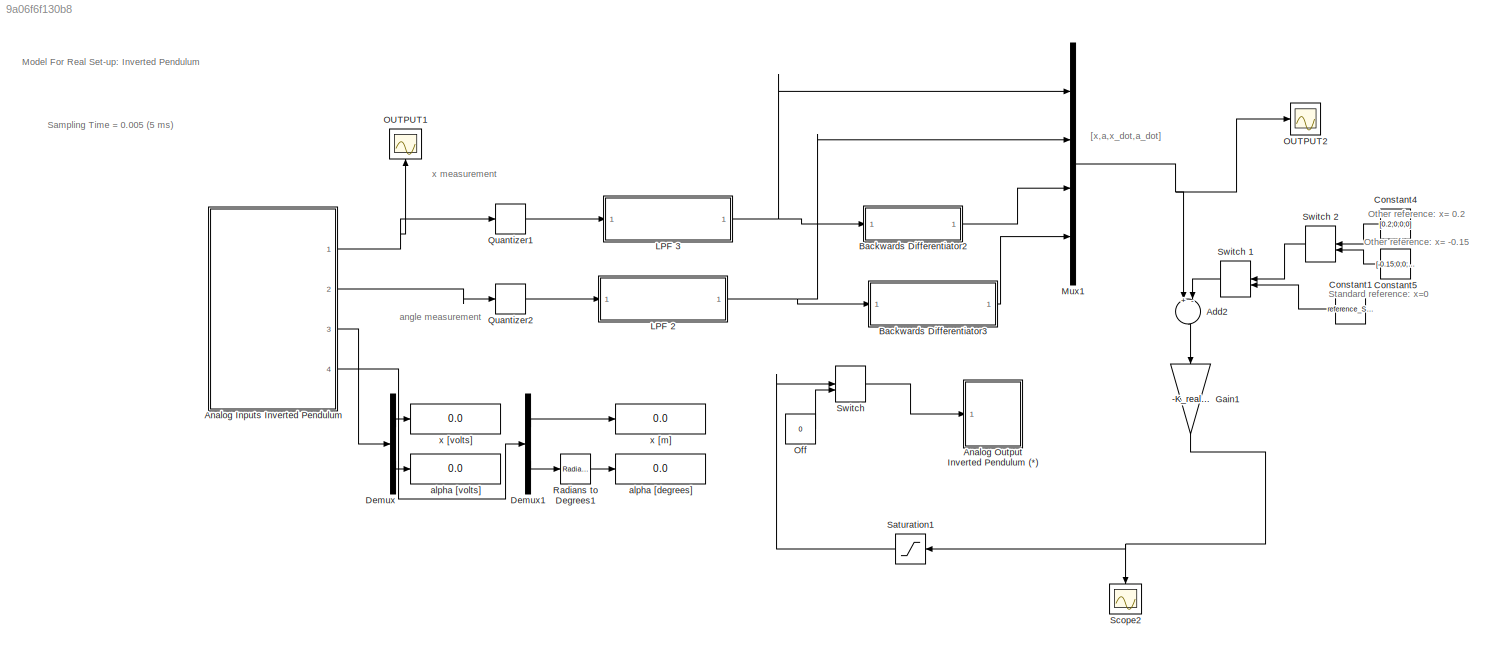
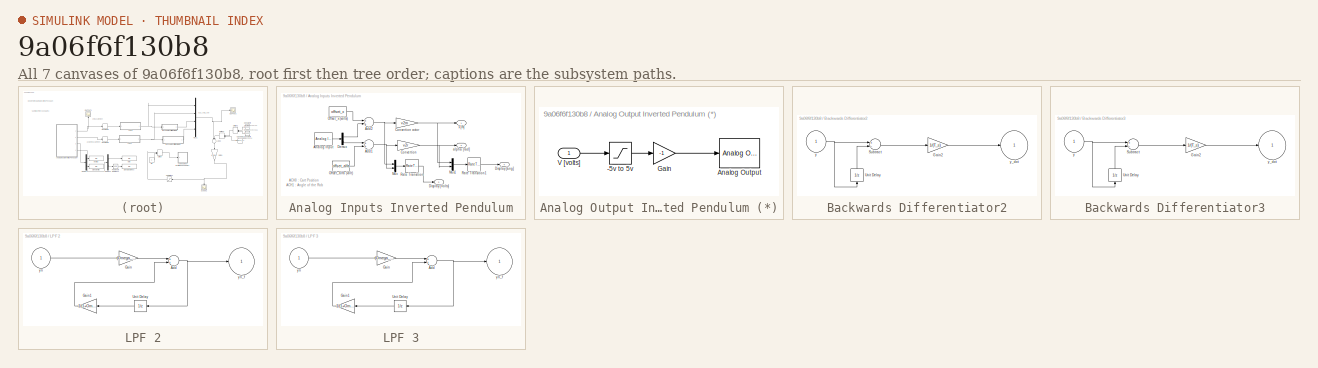
[diagram: thumbnail index - all 7 canvases of the model, root first then tree order]
MODEL slx_9a06f6f130b8
KIND model
CONFIG AbsTol = auto
CONFIG EnableMultiTasking = off
CONFIG FixedStep = 0.005
CONFIG MaxStep = auto
CONFIG MinStep = auto
CONFIG RelTol = 1e-3
CONFIG SampleTimeConstraint = Unconstrained
CONFIG Solver = FixedStepDiscrete
CONFIG SolverName = FixedStepDiscrete
CONFIG StartTime = 0.0
CONFIG StopTime = inf
BLOCK [Sum] Add2
  InputSameDT = off
  Inputs = +-
  OutDataTypeStr = Inherit: Inherit via internal rule
  Ports = [2, 1]
  SaturateOnIntegerOverflow = off
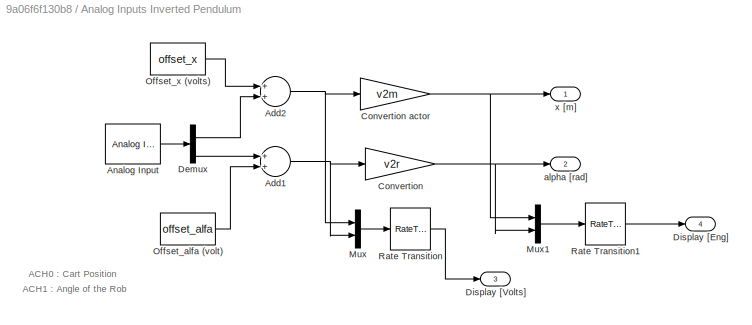
BLOCK [SubSystem] Analog Inputs Inverted Pendulum
  Ports = [0, 4]
  RequestExecContextInheritance = off
BLOCK [Sum] Analog Inputs Inverted Pendulum/Add1
  InputSameDT = off
  OutDataTypeStr = Inherit: Inherit via internal rule
  Ports = [2, 1]
  SaturateOnIntegerOverflow = off
BLOCK [Sum] Analog Inputs Inverted Pendulum/Add2
  InputSameDT = off
  OutDataTypeStr = Inherit: Inherit via internal rule
  Ports = [2, 1]
  SaturateOnIntegerOverflow = off
BLOCK [Reference] Analog Inputs Inverted Pendulum/Analog Input  REF=sldrtlib/Analog Input
  AttributesFormatString = National Instruments\nPCI-6014 [auto]
  Ports = [0, 1]
  SourceBlock = sldrtlib/Analog Input
  SourceProductBaseCode = WT
  SourceProductName = Simulink Desktop Real-Time
  SourceType = Simulink Desktop Real-Time Analog Input
BLOCK [Gain] Analog Inputs Inverted Pendulum/Convertion 
  Gain = v2r
  OutDataTypeStr = Inherit: Inherit via internal rule
  ParamDataTypeStr = Inherit: Inherit via internal rule
  SaturateOnIntegerOverflow = off
BLOCK [Gain] Analog Inputs Inverted Pendulum/Convertion actor
  Gain = v2m
  OutDataTypeStr = Inherit: Inherit via internal rule
  ParamDataTypeStr = Inherit: Inherit via internal rule
  SaturateOnIntegerOverflow = off
BLOCK [Demux] Analog Inputs Inverted Pendulum/Demux
  DisplayOption = bar
  Outputs = 2
  Ports = [1, 2]
BLOCK [Outport] Analog Inputs Inverted Pendulum/Display [Eng]
  IconDisplay = Port number
  Port = 4
BLOCK [Outport] Analog Inputs Inverted Pendulum/Display [Volts]
  IconDisplay = Port number
  Port = 3
BLOCK [Mux] Analog Inputs Inverted Pendulum/Mux
  DisplayOption = bar
  Inputs = 2
  Ports = [2, 1]
BLOCK [Mux] Analog Inputs Inverted Pendulum/Mux1
  DisplayOption = bar
  Inputs = 2
  Ports = [2, 1]
BLOCK [Constant] Analog Inputs Inverted Pendulum/Offset_alfa (volt)
  Value = offset_alfa
BLOCK [Constant] Analog Inputs Inverted Pendulum/Offset_x (volts)
  Value = offset_x
BLOCK [RateTransition] Analog Inputs Inverted Pendulum/Rate Transition
  OutPortSampleTime = 0.25
BLOCK [RateTransition] Analog Inputs Inverted Pendulum/Rate Transition1
  OutPortSampleTime = 0.25
BLOCK [Outport] Analog Inputs Inverted Pendulum/alpha [rad]
  IconDisplay = Port number
  Port = 2
BLOCK [Outport] Analog Inputs Inverted Pendulum/x [m]
  IconDisplay = Port number
BLOCK [SubSystem] Analog Output Inverted Pendulum (*)
  Ports = [1]
  RequestExecContextInheritance = off
BLOCK [Saturate] Analog Output Inverted Pendulum (*)/-5v to 5v
  InputPortMap = u0
  LowerLimit = -5
  Ports = [1, 1]
  UpperLimit = 5
BLOCK [Reference] Analog Output Inverted Pendulum (*)/Analog Output  REF=sldrtlib/Analog Output
  AttributesFormatString = National Instruments\nPCI-6014 [auto]
  Ports = [1]
  SourceBlock = sldrtlib/Analog Output
  SourceProductBaseCode = WT
  SourceProductName = Simulink Desktop Real-Time
  SourceType = Simulink Desktop Real-Time Analog Output
BLOCK [Gain] Analog Output Inverted Pendulum (*)/Gain
  Gain = -1
  OutDataTypeStr = Inherit: Inherit via internal rule
  ParamDataTypeStr = Inherit: Inherit via internal rule
  SaturateOnIntegerOverflow = off
BLOCK [Inport] Analog Output Inverted Pendulum (*)/V [volts]
  IconDisplay = Port number
BLOCK [SubSystem] Backwards Differentiator2
  Ports = [1, 1]
  RequestExecContextInheritance = off
BLOCK [Gain] Backwards Differentiator2/Gain2
  Gain = 1/(T_s)
  OutDataTypeStr = Inherit: Inherit via internal rule
  ParamDataTypeStr = Inherit: Inherit via internal rule
  SaturateOnIntegerOverflow = off
BLOCK [Sum] Backwards Differentiator2/Subtract
  InputSameDT = off
  Inputs = +-
  OutDataTypeStr = Inherit: Inherit via internal rule
  Ports = [2, 1]
  SaturateOnIntegerOverflow = off
BLOCK [UnitDelay] Backwards Differentiator2/Unit Delay
  InputProcessing = Elements as channels (sample based)
  SampleTime = T_s
BLOCK [Inport] Backwards Differentiator2/y
  IconDisplay = Port number
BLOCK [Outport] Backwards Differentiator2/y_dot
  IconDisplay = Port number
BLOCK [SubSystem] Backwards Differentiator3
  Ports = [1, 1]
  RequestExecContextInheritance = off
BLOCK [Gain] Backwards Differentiator3/Gain2
  Gain = 1/(T_s)
  OutDataTypeStr = Inherit: Inherit via internal rule
  ParamDataTypeStr = Inherit: Inherit via internal rule
  SaturateOnIntegerOverflow = off
BLOCK [Sum] Backwards Differentiator3/Subtract
  InputSameDT = off
  Inputs = +-
  OutDataTypeStr = Inherit: Inherit via internal rule
  Ports = [2, 1]
  SaturateOnIntegerOverflow = off
BLOCK [UnitDelay] Backwards Differentiator3/Unit Delay
  InputProcessing = Elements as channels (sample based)
  SampleTime = T_s
BLOCK [Inport] Backwards Differentiator3/y
  IconDisplay = Port number
BLOCK [Outport] Backwards Differentiator3/y_dot
  IconDisplay = Port number
BLOCK [Constant] Constant1
  Value = reference_State
BLOCK [Constant] Constant4
  Value = [0.2;0;0;0]
BLOCK [Constant] Constant5
  Value = [-0.15;0;0;0]
BLOCK [Demux] Demux
  DisplayOption = bar
  Outputs = 2
  Ports = [1, 2]
BLOCK [Demux] Demux1
  DisplayOption = bar
  Outputs = 2
  Ports = [1, 2]
BLOCK [Gain] Gain1
  Gain = -K_realsetup
  Multiplication = Matrix(K*u) (u vector)
  OutDataTypeStr = Inherit: Inherit via internal rule
  ParamDataTypeStr = Inherit: Inherit via internal rule
  SaturateOnIntegerOverflow = off
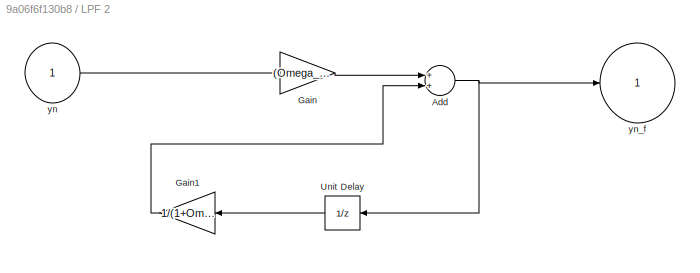
BLOCK [SubSystem] LPF 2
  Ports = [1, 1]
  RequestExecContextInheritance = off
BLOCK [Sum] LPF 2/Add
  InputSameDT = off
  OutDataTypeStr = Inherit: Inherit via internal rule
  Ports = [2, 1]
  SaturateOnIntegerOverflow = off
BLOCK [Gain] LPF 2/Gain
  Gain = (Omega_c*T_s)/(1+Omega_c*T_s)
  OutDataTypeStr = Inherit: Inherit via internal rule
  ParamDataTypeStr = Inherit: Inherit via internal rule
  SaturateOnIntegerOverflow = off
BLOCK [Gain] LPF 2/Gain1
  Gain = 1/(1+Omega_c*T_s)
  OutDataTypeStr = Inherit: Inherit via internal rule
  ParamDataTypeStr = Inherit: Inherit via internal rule
  SaturateOnIntegerOverflow = off
BLOCK [UnitDelay] LPF 2/Unit Delay
  InputProcessing = Elements as channels (sample based)
  SampleTime = T_s
BLOCK [Inport] LPF 2/yn
  IconDisplay = Port number
BLOCK [Outport] LPF 2/yn_f
  IconDisplay = Port number
BLOCK [SubSystem] LPF 3
  Ports = [1, 1]
  RequestExecContextInheritance = off
BLOCK [Sum] LPF 3/Add
  InputSameDT = off
  OutDataTypeStr = Inherit: Inherit via internal rule
  Ports = [2, 1]
  SaturateOnIntegerOverflow = off
BLOCK [Gain] LPF 3/Gain
  Gain = (Omega_c*T_s)/(1+Omega_c*T_s)
  OutDataTypeStr = Inherit: Inherit via internal rule
  ParamDataTypeStr = Inherit: Inherit via internal rule
  SaturateOnIntegerOverflow = off
BLOCK [Gain] LPF 3/Gain1
  Gain = 1/(1+Omega_c*T_s)
  OutDataTypeStr = Inherit: Inherit via internal rule
  ParamDataTypeStr = Inherit: Inherit via internal rule
  SaturateOnIntegerOverflow = off
BLOCK [UnitDelay] LPF 3/Unit Delay
  InputProcessing = Elements as channels (sample based)
  SampleTime = T_s
BLOCK [Inport] LPF 3/yn
  IconDisplay = Port number
BLOCK [Outport] LPF 3/yn_f
  IconDisplay = Port number
BLOCK [Mux] Mux1
  DisplayOption = bar
  Ports = [4, 1]
BLOCK [Scope] OUTPUT1
  Floating = off
  NumInputPorts = 1
  Ports = [1]
  ScopeSpecificationString = Simulink.scopes.TimeScopeBlockCfg('CurrentConfiguration', extmgr.ConfigurationSet(extmgr.Configuration('Core','General UI',true),extmgr.Configuration('Core','Source UI',true),extmgr.Configuration('Sources','WiredSimulink',true,'DataLoggingVariableName','ScopeData4'),extmgr.Configuration('Visuals','Time Domain',true,'SerializedDisplays',{struct('MinYLimReal','0.19763','MaxYLimReal','0.20198','YLabe...<+1436ch>
BLOCK [Scope] OUTPUT2
  Floating = off
  NumInputPorts = 1
  Ports = [1]
  ScopeSpecificationString = Simulink.scopes.TimeScopeBlockCfg('CurrentConfiguration', extmgr.ConfigurationSet(extmgr.Configuration('Core','General UI',true),extmgr.Configuration('Core','Source UI',true),extmgr.Configuration('Sources','WiredSimulink',true,'DataLoggingVariableName','ScopeData1'),extmgr.Configuration('Visuals','Time Domain',true,'SerializedDisplays',{struct('MinYLimReal','-0.55317','MaxYLimReal','0.66413','YLab...<+1594ch>
BLOCK [Constant] Off
  Value = 0
BLOCK [Quantizer] Quantizer1
  QuantizationInterval = Q_interval
BLOCK [Quantizer] Quantizer2
  QuantizationInterval = Q_interval
BLOCK [Reference] Radians to Degrees1  REF=simulink_extras/Transformations/Radians
to Degrees
  Ports = [1, 1]
  SourceBlock = simulink_extras/Transformations/Radians\nto Degrees
  SourceProductBaseCode = SL
  SourceProductName = Simulink
  SourceType = RadiansToDegrees
BLOCK [Saturate] Saturation1
  InputPortMap = u0
  LowerLimit = -V_max
  Ports = [1, 1]
  UpperLimit = V_max
BLOCK [Scope] Scope2
  Floating = off
  NumInputPorts = 1
  Ports = [1]
  ScopeSpecificationString = Simulink.scopes.TimeScopeBlockCfg('CurrentConfiguration', extmgr.ConfigurationSet(extmgr.Configuration('Core','General UI',true),extmgr.Configuration('Core','Source UI',true),extmgr.Configuration('Sources','WiredSimulink',true,'DataLoggingVariableName','ScopeData3'),extmgr.Configuration('Visuals','Time Domain',true,'SerializedDisplays',{struct('MinYLimReal','-5.44446','MaxYLimReal','4.95313','YLab...<+1412ch>
BLOCK [ManualSwitch] Switch  
  CurrentSetting = 0
BLOCK [ManualSwitch] Switch  1
  CurrentSetting = 0
BLOCK [ManualSwitch] Switch  2
  CurrentSetting = 0
BLOCK [Display] alpha [degrees]
  Decimation = 1
  Ports = [1]
BLOCK [Display] alpha [volts]
  Decimation = 1
  Ports = [1]
BLOCK [Display] x [m]
  Decimation = 1
  Ports = [1]
BLOCK [Display] x [volts]
  Decimation = 1
  Ports = [1]
ANNOTATION (root): Sampling Time = 0.005 (5 ms)
ANNOTATION (root): Model For Real Set-up: Inverted Pendulum
ANNOTATION (root): Other reference: x= -0.15
ANNOTATION (root): Other reference: x= 0.2
ANNOTATION (root): Standard reference: x=0
ANNOTATION (root): [x,a,x_dot,a_dot]
ANNOTATION (root): angle measurement
ANNOTATION (root): x measurement
ANNOTATION Analog Inputs Inverted Pendulum: ACH0 : Cart Position
ANNOTATION Analog Inputs Inverted Pendulum: ACH1 : Angle of the Rob
LINE Add2:1 -> Gain1:1
NET Analog Inputs Inverted Pendulum/Add1:1 -> Analog Inputs Inverted Pendulum/Convertion :1, Analog Inputs Inverted Pendulum/Mux:2
NET Analog Inputs Inverted Pendulum/Add2:1 -> Analog Inputs Inverted Pendulum/Convertion actor:1, Analog Inputs Inverted Pendulum/Mux:1
LINE Analog Inputs Inverted Pendulum/Analog Input:1 -> Analog Inputs Inverted Pendulum/Demux:1
NET Analog Inputs Inverted Pendulum/Convertion :1 -> Analog Inputs Inverted Pendulum/Mux1:2, Analog Inputs Inverted Pendulum/alpha [rad]:1
NET Analog Inputs Inverted Pendulum/Convertion actor:1 -> Analog Inputs Inverted Pendulum/Mux1:1, Analog Inputs Inverted Pendulum/x [m]:1
LINE Analog Inputs Inverted Pendulum/Demux:1 -> Analog Inputs Inverted Pendulum/Add2:2
LINE Analog Inputs Inverted Pendulum/Demux:2 -> Analog Inputs Inverted Pendulum/Add1:1
LINE Analog Inputs Inverted Pendulum/Mux1:1 -> Analog Inputs Inverted Pendulum/Rate Transition1:1
LINE Analog Inputs Inverted Pendulum/Mux:1 -> Analog Inputs Inverted Pendulum/Rate Transition:1
LINE Analog Inputs Inverted Pendulum/Offset_alfa (volt):1 -> Analog Inputs Inverted Pendulum/Add1:2
LINE Analog Inputs Inverted Pendulum/Offset_x (volts):1 -> Analog Inputs Inverted Pendulum/Add2:1
LINE Analog Inputs Inverted Pendulum/Rate Transition1:1 -> Analog Inputs Inverted Pendulum/Display [Eng]:1
LINE Analog Inputs Inverted Pendulum/Rate Transition:1 -> Analog Inputs Inverted Pendulum/Display [Volts]:1
NET Analog Inputs Inverted Pendulum:1 -> OUTPUT1:1, Quantizer1:1
LINE Analog Inputs Inverted Pendulum:2 -> Quantizer2:1
LINE Analog Inputs Inverted Pendulum:3 -> Demux:1
LINE Analog Inputs Inverted Pendulum:4 -> Demux1:1
LINE Analog Output Inverted Pendulum (*)/-5v to 5v:1 -> Analog Output Inverted Pendulum (*)/Gain:1
LINE Analog Output Inverted Pendulum (*)/Gain:1 -> Analog Output Inverted Pendulum (*)/Analog Output:1
LINE Analog Output Inverted Pendulum (*)/V [volts]:1 -> Analog Output Inverted Pendulum (*)/-5v to 5v:1
LINE Backwards Differentiator2/Gain2:1 -> Backwards Differentiator2/y_dot:1
LINE Backwards Differentiator2/Subtract:1 -> Backwards Differentiator2/Gain2:1
LINE Backwards Differentiator2/Unit Delay:1 -> Backwards Differentiator2/Subtract:2
NET Backwards Differentiator2/y:1 -> Backwards Differentiator2/Subtract:1, Backwards Differentiator2/Unit Delay:1
LINE Backwards Differentiator2:1 -> Mux1:3
LINE Backwards Differentiator3/Gain2:1 -> Backwards Differentiator3/y_dot:1
LINE Backwards Differentiator3/Subtract:1 -> Backwards Differentiator3/Gain2:1
LINE Backwards Differentiator3/Unit Delay:1 -> Backwards Differentiator3/Subtract:2
NET Backwards Differentiator3/y:1 -> Backwards Differentiator3/Subtract:1, Backwards Differentiator3/Unit Delay:1
LINE Backwards Differentiator3:1 -> Mux1:4
LINE Constant1:1 -> Switch  1:2
LINE Constant4:1 -> Switch  2:1
LINE Constant5:1 -> Switch  2:2
LINE Demux1:1 -> x [m]:1
LINE Demux1:2 -> Radians to Degrees1:1
LINE Demux:1 -> x [volts]:1
LINE Demux:2 -> alpha [volts]:1
NET Gain1:1 -> Saturation1:1, Scope2:1
NET LPF 2/Add:1 -> LPF 2/Unit Delay:1, LPF 2/yn_f:1
LINE LPF 2/Gain1:1 -> LPF 2/Add:2
LINE LPF 2/Gain:1 -> LPF 2/Add:1
LINE LPF 2/Unit Delay:1 -> LPF 2/Gain1:1
LINE LPF 2/yn:1 -> LPF 2/Gain:1
NET LPF 2:1 -> Backwards Differentiator3:1, Mux1:2
NET LPF 3/Add:1 -> LPF 3/Unit Delay:1, LPF 3/yn_f:1
LINE LPF 3/Gain1:1 -> LPF 3/Add:2
LINE LPF 3/Gain:1 -> LPF 3/Add:1
LINE LPF 3/Unit Delay:1 -> LPF 3/Gain1:1
LINE LPF 3/yn:1 -> LPF 3/Gain:1
NET LPF 3:1 -> Backwards Differentiator2:1, Mux1:1
NET Mux1:1 -> Add2:1, OUTPUT2:1
LINE Off:1 -> Switch  :2
LINE Quantizer1:1 -> LPF 3:1
LINE Quantizer2:1 -> LPF 2:1
LINE Radians to Degrees1:1 -> alpha [degrees]:1
LINE Saturation1:1 -> Switch  :1
LINE Switch  1:1 -> Add2:2
LINE Switch  2:1 -> Switch  1:1
LINE Switch  :1 -> Analog Output Inverted Pendulum (*):1
note: NET lines group one-source signal fan-out (src -> all destinations, sorted); 1:1 wires keep LINE
